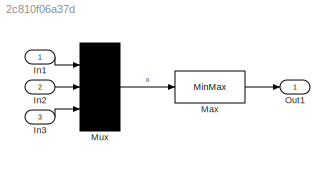
MODEL slx_2c810f06a37d
KIND model
CONFIG AbsTol = auto
CONFIG EnableMultiTasking = off
CONFIG FixedStep = auto
CONFIG MaxStep = auto
CONFIG MinStep = auto
CONFIG RelTol = 1e-3
CONFIG SampleTimeConstraint = Unconstrained
CONFIG SolverName = FixedStepAuto
CONFIG StartTime = 0.0
CONFIG StopTime = 10.0
BLOCK [Inport] In1
BLOCK [Inport] In2
  Port = 2
BLOCK [Inport] In3
  Port = 3
BLOCK [MinMax] Max
  Function = max
  Ports = [1, 1]
BLOCK [Mux] Mux
  DisplayOption = signals
  Inputs = 3
  Ports = [3, 1]
BLOCK [Outport] Out1
LINE In1:1 -> Mux:1
LINE In2:1 -> Mux:2
LINE In3:1 -> Mux:3
LINE Max:1 -> Out1:1
LINE Mux:1 -> Max:1
